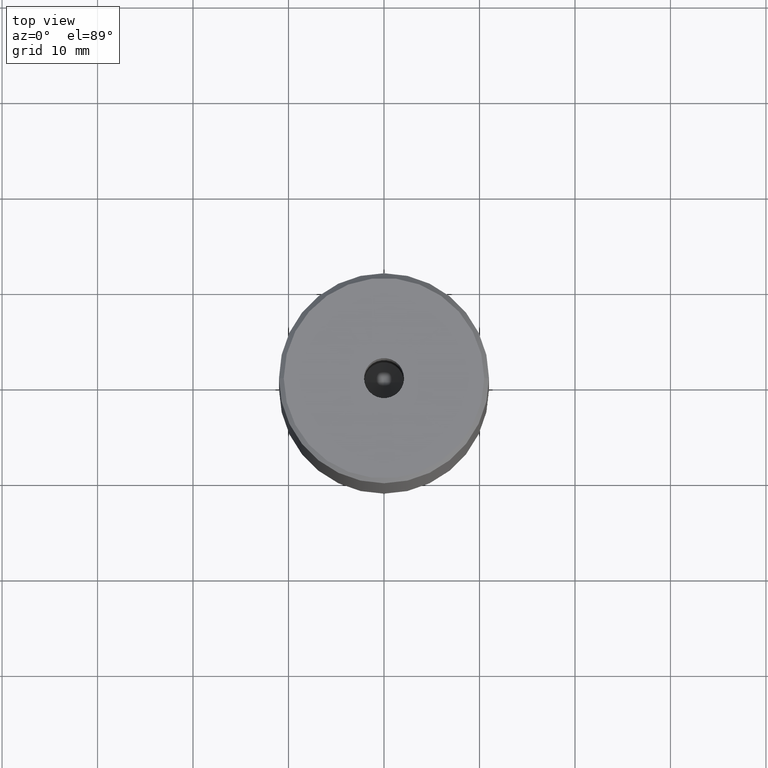
[diagram: clean part render]
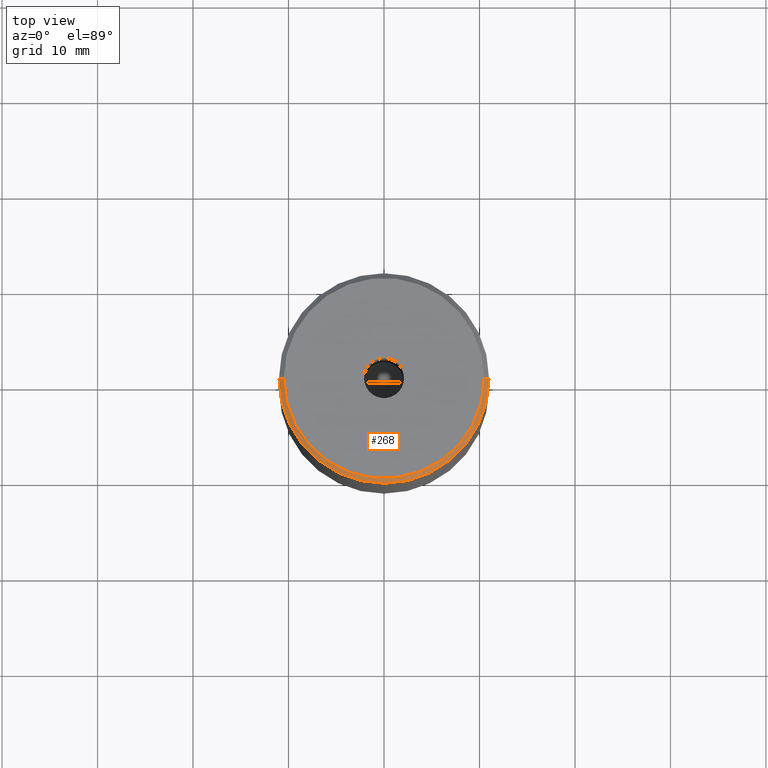
[diagram: same view with one face highlighted and labeled with its STEP entity id]
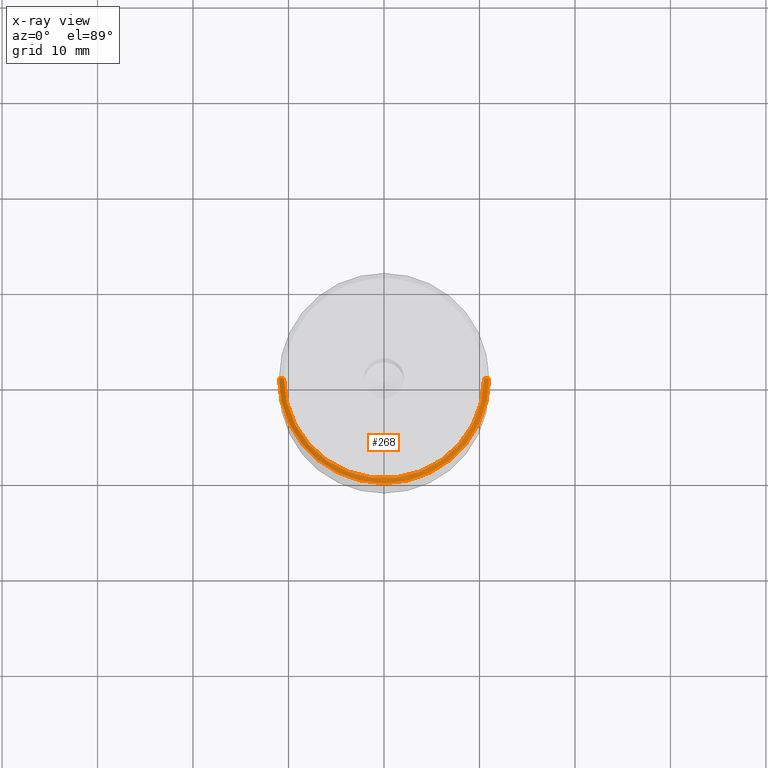
[diagram: x-ray of the same camera — body ghosted, the highlighted face saturated]
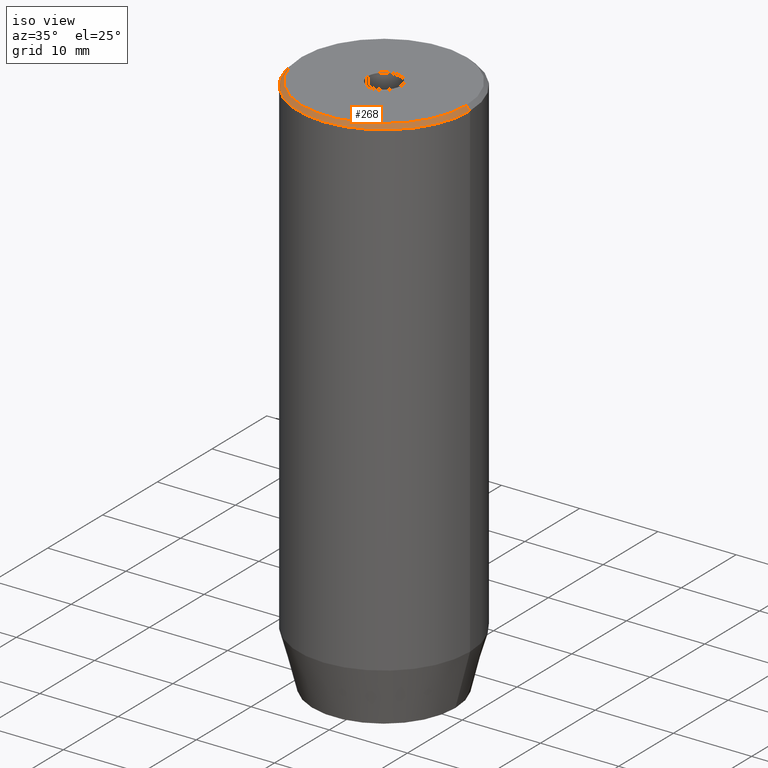
[diagram: same view with one face highlighted and labeled with its STEP entity id]
A machine part, top view. The second image highlights one B-rep face of the part: STEP entity #268.
The next image is the same camera in x-ray: the body ghosted, the highlighted face saturated — about 0% of this face is hidden behind the body in this view.
A second angle (iso view) of the same face is appended — the face is thin or edge-on in the first view.
In plain terms, the highlighted conical surface has half-angle 45 deg.
Its self-contained STEP definition (entity closure, byte-faithful):
#9 = LINE ( 'NONE', #536, #107 ) ;
#48 = DIRECTION ( 'NONE',  ( -0.7071067811865451302, 0.000000000000000000, -0.7071067811865500152 ) ) ;
#52 = DIRECTION ( 'NONE',  ( -1.000000000000000000, 0.000000000000000000, 0.000000000000000000 ) ) ;
#55 = ORIENTED_EDGE ( 'NONE', *, *, #246, .F. ) ;
#65 = EDGE_LOOP ( 'NONE', ( #55, #502, #420, #256 ) ) ;
#68 = EDGE_CURVE ( 'NONE', #173, #346, #141, .T. ) ;
#77 = AXIS2_PLACEMENT_3D ( 'NONE', #140, #269, #177 ) ;
#85 = DIRECTION ( 'NONE',  ( 1.000000000000000000, 0.000000000000000000, 0.000000000000000000 ) ) ;
#93 = CARTESIAN_POINT ( 'NONE',  ( 0.000000000000000000, 0.000000000000000000, 0.000000000000000000 ) ) ;
#107 = VECTOR ( 'NONE', #233, 1000.000000000000114 ) ;
#135 = CARTESIAN_POINT ( 'NONE',  ( 0.000000000000000000, 0.000000000000000000, 0.000000000000000000 ) ) ;
#140 = CARTESIAN_POINT ( 'NONE',  ( 0.000000000000000000, 0.000000000000000000, -0.5000000000000213163 ) ) ;
#141 = LINE ( 'NONE', #538, #499 ) ;
#144 = VERTEX_POINT ( 'NONE', #515 ) ;
#173 = VERTEX_POINT ( 'NONE', #495 ) ;
#176 = CONICAL_SURFACE ( 'NONE', #486, 10.49999999999998224, 0.7853981633974447263 ) ;
#177 = DIRECTION ( 'NONE',  ( 1.000000000000000000, 0.000000000000000000, 0.000000000000000000 ) ) ;
#183 = FACE_OUTER_BOUND ( 'NONE', #65, .T. ) ;
#233 = DIRECTION ( 'NONE',  ( 0.7071067811865451302, 8.659560562354904508E-17, -0.7071067811865500152 ) ) ;
#244 = VERTEX_POINT ( 'NONE', #533 ) ;
#246 = EDGE_CURVE ( 'NONE', #244, #144, #9, .T. ) ;
#256 = ORIENTED_EDGE ( 'NONE', *, *, #321, .F. ) ;
#268 = ADVANCED_FACE ( 'NONE', ( #183 ), #176, .T. ) ;
#269 = DIRECTION ( 'NONE',  ( 0.000000000000000000, 0.000000000000000000, -1.000000000000000000 ) ) ;
#272 = DIRECTION ( 'NONE',  ( -0.000000000000000000, -0.000000000000000000, 1.000000000000000000 ) ) ;
#276 = CIRCLE ( 'NONE', #564, 10.49999999999998224 ) ;
#277 = DIRECTION ( 'NONE',  ( 0.000000000000000000, 0.000000000000000000, -1.000000000000000000 ) ) ;
#321 = EDGE_CURVE ( 'NONE', #144, #346, #503, .T. ) ;
#346 = VERTEX_POINT ( 'NONE', #544 ) ;
#356 = EDGE_CURVE ( 'NONE', #173, #244, #276, .T. ) ;
#420 = ORIENTED_EDGE ( 'NONE', *, *, #68, .T. ) ;
#486 = AXIS2_PLACEMENT_3D ( 'NONE', #93, #277, #52 ) ;
#495 = CARTESIAN_POINT ( 'NONE',  ( -10.49999999999998224, 0.000000000000000000, 0.000000000000000000 ) ) ;
#499 = VECTOR ( 'NONE', #48, 1000.000000000000114 ) ;
#502 = ORIENTED_EDGE ( 'NONE', *, *, #356, .F. ) ;
#503 = CIRCLE ( 'NONE', #77, 11.00000000000000000 ) ;
#515 = CARTESIAN_POINT ( 'NONE',  ( 11.00000000000000000, 0.000000000000000000, -0.5000000000000213163 ) ) ;
#533 = CARTESIAN_POINT ( 'NONE',  ( 10.49999999999998224, 1.316495309083403434E-15, 0.000000000000000000 ) ) ;
#536 = CARTESIAN_POINT ( 'NONE',  ( 10.49999999999998224, 1.285879139104718661E-15, 0.000000000000000000 ) ) ;
#538 = CARTESIAN_POINT ( 'NONE',  ( -10.49999999999998224, 0.000000000000000000, 0.000000000000000000 ) ) ;
#544 = CARTESIAN_POINT ( 'NONE',  ( -11.00000000000000000, 1.347111479062088405E-15, -0.5000000000000213163 ) ) ;
#564 = AXIS2_PLACEMENT_3D ( 'NONE', #135, #272, #85 ) ;